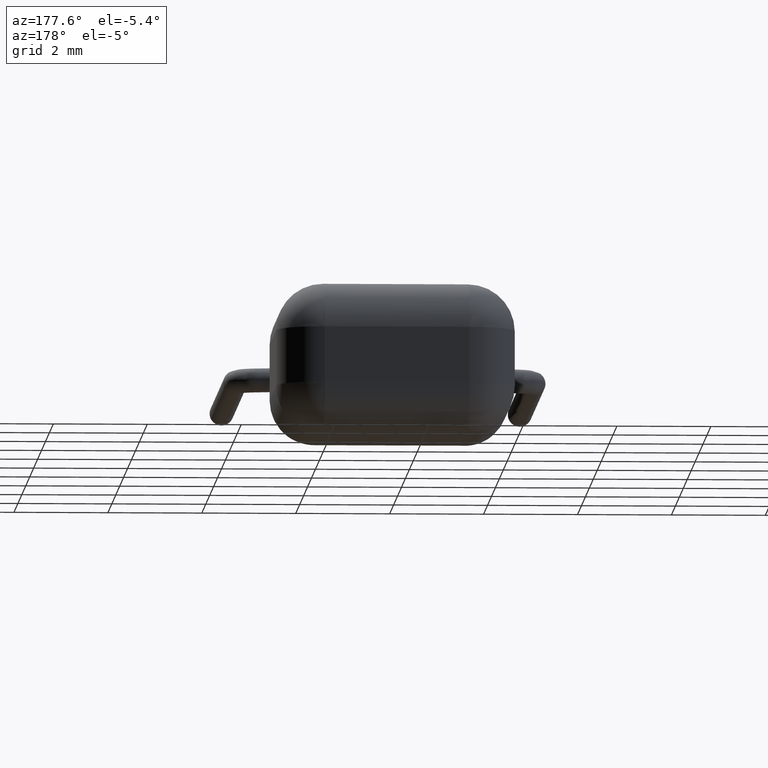
[diagram: clean part render]
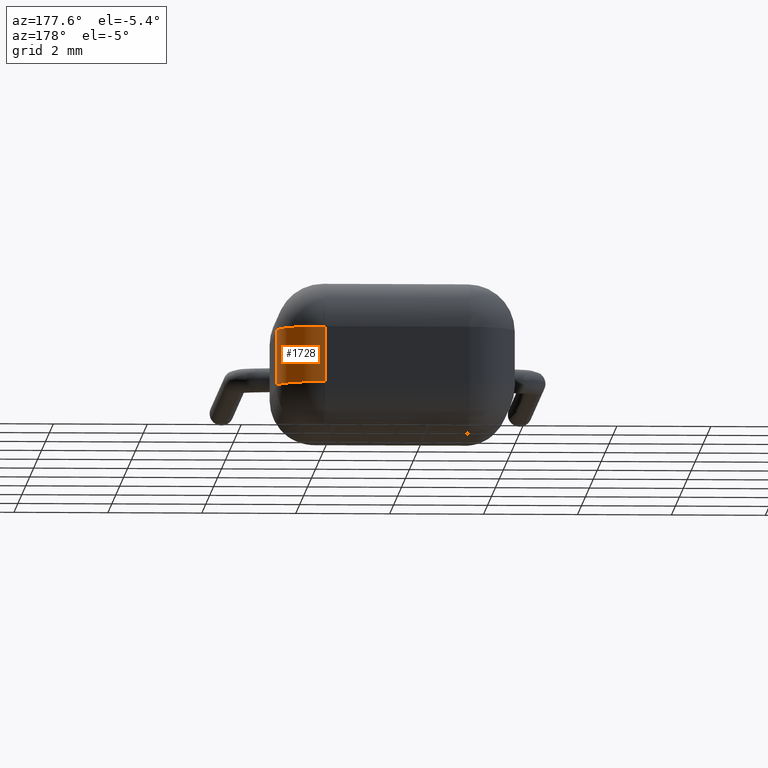
[diagram: same view with one face highlighted and labeled with its STEP entity id]
A machine part, auxiliary view. The second image highlights one B-rep face of the part: STEP entity #1728.
In plain terms, the highlighted cylindrical surface (partial cylindrical patch) has radius 1 mm, axis along (0, 0, -1).
Its self-contained STEP definition (entity closure, byte-faithful):
#8 = EDGE_LOOP ( 'NONE', ( #2011, #6693, #2769, #2359 ) ) ;
#175 = CYLINDRICAL_SURFACE ( 'NONE', #5044, 1.000000000000000000 ) ;
#418 = LINE ( 'NONE', #2593, #1490 ) ;
#456 = VERTEX_POINT ( 'NONE', #5431 ) ;
#570 = CARTESIAN_POINT ( 'NONE',  ( 4.079999999999999200, 4.810760000000000100, 3.180000000000000200 ) ) ;
#1005 = DIRECTION ( 'NONE',  ( 0.0000000000000000000, 0.0000000000000000000, -1.000000000000000000 ) ) ;
#1035 = AXIS2_PLACEMENT_3D ( 'NONE', #4653, #3116, #5139 ) ;
#1043 = CARTESIAN_POINT ( 'NONE',  ( 4.079999999999999200, 4.810760000000000100, 1.000000000000000000 ) ) ;
#1161 = FACE_OUTER_BOUND ( 'NONE', #8, .T. ) ;
#1201 = VECTOR ( 'NONE', #1005, 1000.000000000000000 ) ;
#1202 = VERTEX_POINT ( 'NONE', #1043 ) ;
#1408 = EDGE_CURVE ( 'NONE', #1974, #4382, #418, .T. ) ;
#1490 = VECTOR ( 'NONE', #3115, 1000.000000000000000 ) ;
#1728 = ADVANCED_FACE ( 'NONE', ( #1161 ), #175, .T. ) ;
#1943 = DIRECTION ( 'NONE',  ( 0.0000000000000000000, 0.0000000000000000000, -1.000000000000000000 ) ) ;
#1965 = DIRECTION ( 'NONE',  ( -1.000000000000000000, 0.0000000000000000000, 0.0000000000000000000 ) ) ;
#1974 = VERTEX_POINT ( 'NONE', #4911 ) ;
#2011 = ORIENTED_EDGE ( 'NONE', *, *, #1408, .F. ) ;
#2039 = DIRECTION ( 'NONE',  ( -1.000000000000000000, 0.0000000000000000000, 0.0000000000000000000 ) ) ;
#2359 = ORIENTED_EDGE ( 'NONE', *, *, #6299, .T. ) ;
#2486 = EDGE_CURVE ( 'NONE', #1974, #1202, #3416, .T. ) ;
#2560 = DIRECTION ( 'NONE',  ( 0.0000000000000000000, 0.0000000000000000000, -1.000000000000000000 ) ) ;
#2579 = AXIS2_PLACEMENT_3D ( 'NONE', #4532, #1943, #1965 ) ;
#2593 = CARTESIAN_POINT ( 'NONE',  ( 5.080000000000000100, 3.810759999999999700, 3.180000000000000200 ) ) ;
#2769 = ORIENTED_EDGE ( 'NONE', *, *, #6001, .F. ) ;
#3078 = CARTESIAN_POINT ( 'NONE',  ( 5.080000000000000100, 3.810759999999999700, 2.180000000000000200 ) ) ;
#3115 = DIRECTION ( 'NONE',  ( -0.0000000000000000000, -0.0000000000000000000, 1.000000000000000000 ) ) ;
#3116 = DIRECTION ( 'NONE',  ( -0.0000000000000000000, -0.0000000000000000000, 1.000000000000000000 ) ) ;
#3416 = CIRCLE ( 'NONE', #1035, 1.000000000000000000 ) ;
#3678 = CARTESIAN_POINT ( 'NONE',  ( 4.079999999999999200, 3.810759999999999700, 3.180000000000000200 ) ) ;
#4356 = CIRCLE ( 'NONE', #2579, 1.000000000000000000 ) ;
#4382 = VERTEX_POINT ( 'NONE', #3078 ) ;
#4532 = CARTESIAN_POINT ( 'NONE',  ( 4.079999999999999200, 3.810759999999999700, 2.180000000000000200 ) ) ;
#4653 = CARTESIAN_POINT ( 'NONE',  ( 4.079999999999999200, 3.810759999999999700, 1.000000000000000000 ) ) ;
#4911 = CARTESIAN_POINT ( 'NONE',  ( 5.080000000000000100, 3.810759999999999700, 1.000000000000000000 ) ) ;
#5044 = AXIS2_PLACEMENT_3D ( 'NONE', #3678, #2560, #2039 ) ;
#5139 = DIRECTION ( 'NONE',  ( -1.000000000000000000, 0.0000000000000000000, 0.0000000000000000000 ) ) ;
#5431 = CARTESIAN_POINT ( 'NONE',  ( 4.079999999999999200, 4.810760000000000100, 2.180000000000000200 ) ) ;
#6001 = EDGE_CURVE ( 'NONE', #456, #1202, #6208, .T. ) ;
#6208 = LINE ( 'NONE', #570, #1201 ) ;
#6299 = EDGE_CURVE ( 'NONE', #456, #4382, #4356, .T. ) ;
#6693 = ORIENTED_EDGE ( 'NONE', *, *, #2486, .T. ) ;